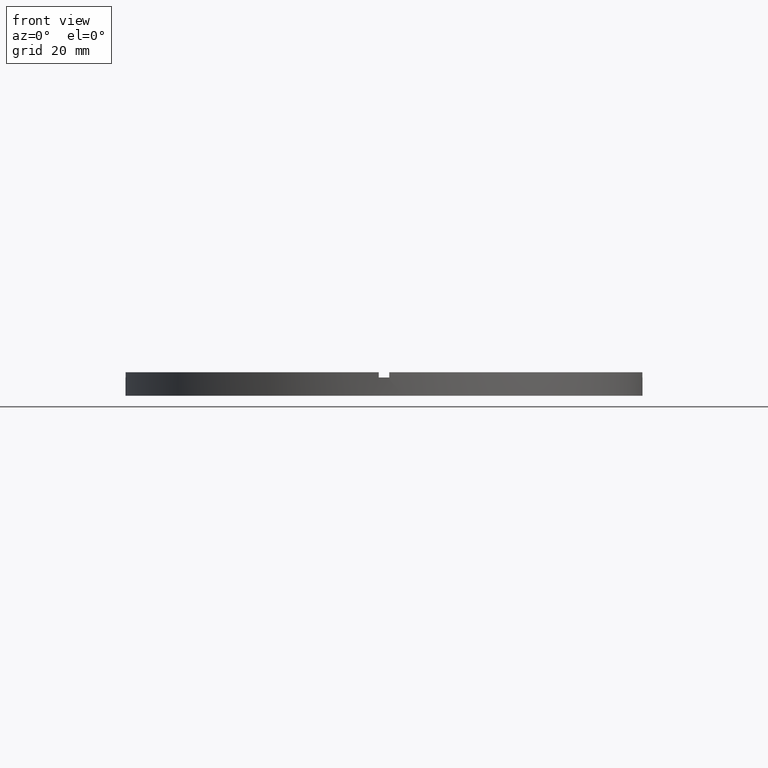
[diagram: clean part render]
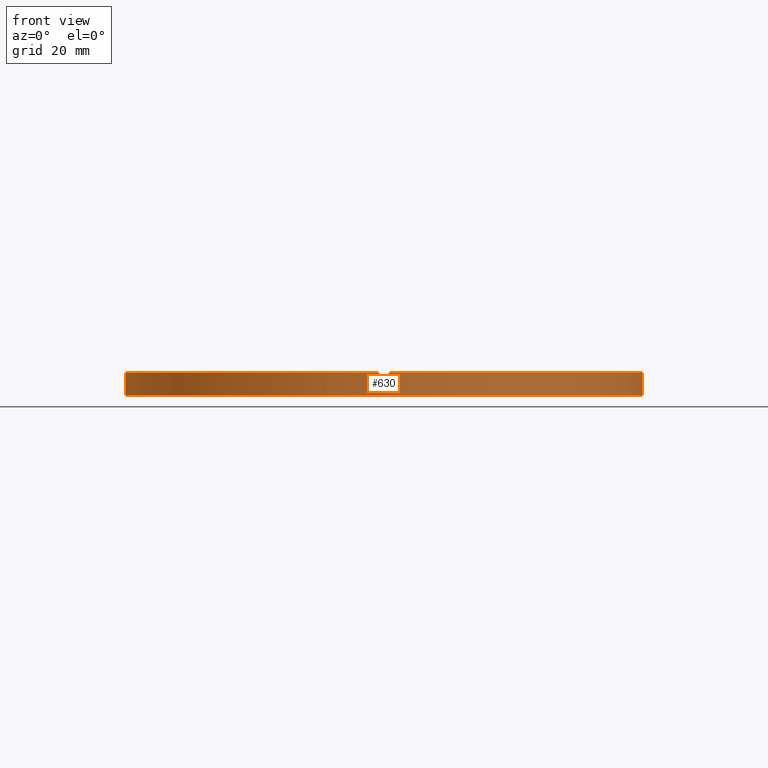
[diagram: same view with one face highlighted and labeled with its STEP entity id]
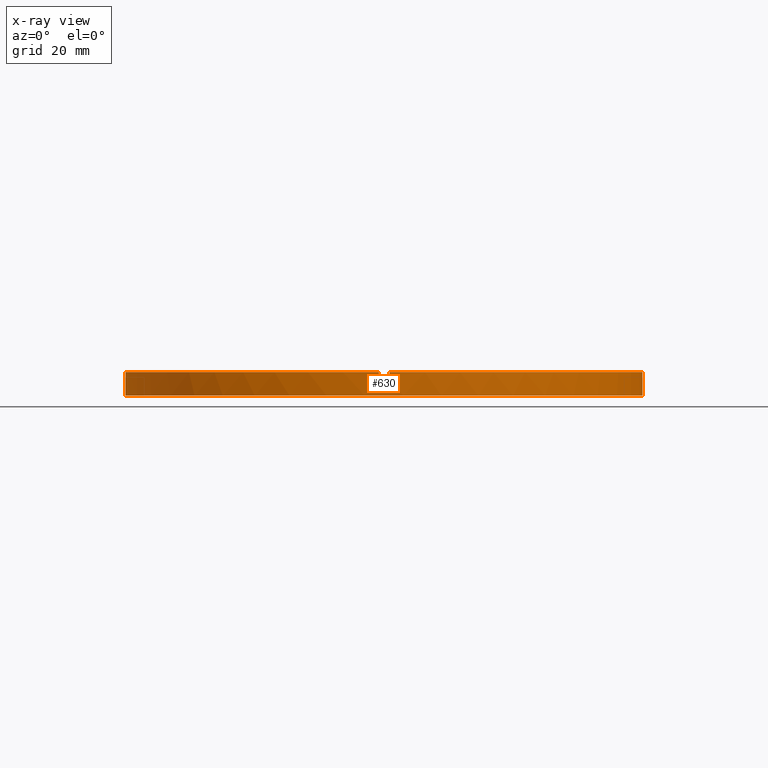
[diagram: x-ray of the same camera — body ghosted, the highlighted face saturated]
A machine part, front view. The second image highlights one B-rep face of the part: STEP entity #630.
The next image is the same camera in x-ray: the body ghosted, the highlighted face saturated — about 0% of this face is hidden behind the body in this view.
In plain terms, the highlighted cylindrical surface (partial cylindrical patch) has radius 49.5 mm, axis along (-0, -0, -1).
Its self-contained STEP definition (entity closure, byte-faithful):
#11 = DIRECTION ( 'NONE',  ( 0.000000000000000000, 0.000000000000000000, 1.000000000000000000 ) ) ;
#12 = LINE ( 'NONE', #435, #508 ) ;
#16 = VECTOR ( 'NONE', #64, 1000.000000000000000 ) ;
#29 = AXIS2_PLACEMENT_3D ( 'NONE', #514, #223, #214 ) ;
#31 = ORIENTED_EDGE ( 'NONE', *, *, #663, .F. ) ;
#34 = CARTESIAN_POINT ( 'NONE',  ( -49.50000000000000711, 0.000000000000000000, 0.000000000000000000 ) ) ;
#42 = ORIENTED_EDGE ( 'NONE', *, *, #594, .T. ) ;
#45 = ORIENTED_EDGE ( 'NONE', *, *, #406, .T. ) ;
#64 = DIRECTION ( 'NONE',  ( -0.000000000000000000, -0.000000000000000000, -1.000000000000000000 ) ) ;
#75 = EDGE_CURVE ( 'NONE', #221, #384, #12, .T. ) ;
#87 = CARTESIAN_POINT ( 'NONE',  ( 0.000000000000000000, 0.000000000000000000, 3.499999999999999556 ) ) ;
#90 = EDGE_CURVE ( 'NONE', #302, #783, #511, .T. ) ;
#91 = CARTESIAN_POINT ( 'NONE',  ( -49.48989795907849043, -1.000000000000031308, 3.499999999999999556 ) ) ;
#93 = EDGE_CURVE ( 'NONE', #424, #757, #444, .T. ) ;
#109 = CARTESIAN_POINT ( 'NONE',  ( 0.9999999999998430145, -49.48989795907849043, 3.499999999999999556 ) ) ;
#110 = AXIS2_PLACEMENT_3D ( 'NONE', #711, #11, #596 ) ;
#119 = EDGE_CURVE ( 'NONE', #424, #496, #193, .T. ) ;
#121 = AXIS2_PLACEMENT_3D ( 'NONE', #440, #497, #751 ) ;
#126 = EDGE_CURVE ( 'NONE', #687, #504, #449, .T. ) ;
#130 = DIRECTION ( 'NONE',  ( 0.000000000000000000, 0.000000000000000000, 1.000000000000000000 ) ) ;
#144 = CARTESIAN_POINT ( 'NONE',  ( 0.000000000000000000, 0.000000000000000000, 3.499999999999999556 ) ) ;
#152 = CIRCLE ( 'NONE', #773, 49.50000000000000711 ) ;
#156 = AXIS2_PLACEMENT_3D ( 'NONE', #144, #347, #448 ) ;
#172 = CARTESIAN_POINT ( 'NONE',  ( -49.50000000000000711, 0.000000000000000000, 3.499999999999999556 ) ) ;
#173 = VECTOR ( 'NONE', #567, 1000.000000000000000 ) ;
#184 = VECTOR ( 'NONE', #746, 1000.000000000000000 ) ;
#190 = VECTOR ( 'NONE', #618, 1000.000000000000000 ) ;
#193 = CIRCLE ( 'NONE', #388, 49.50000000000000711 ) ;
#202 = FACE_OUTER_BOUND ( 'NONE', #292, .T. ) ;
#210 = LINE ( 'NONE', #493, #173 ) ;
#214 = DIRECTION ( 'NONE',  ( 1.000000000000000000, 0.000000000000000000, 0.000000000000000000 ) ) ;
#221 = VERTEX_POINT ( 'NONE', #608 ) ;
#223 = DIRECTION ( 'NONE',  ( -0.000000000000000000, 0.000000000000000000, 1.000000000000000000 ) ) ;
#226 = CARTESIAN_POINT ( 'NONE',  ( -1.000000000000156986, -49.48989795907849043, 4.500000000000000000 ) ) ;
#229 = AXIS2_PLACEMENT_3D ( 'NONE', #509, #284, #678 ) ;
#233 = ORIENTED_EDGE ( 'NONE', *, *, #126, .F. ) ;
#236 = EDGE_CURVE ( 'NONE', #302, #757, #152, .T. ) ;
#258 = VERTEX_POINT ( 'NONE', #470 ) ;
#284 = DIRECTION ( 'NONE',  ( -0.000000000000000000, -0.000000000000000000, -1.000000000000000000 ) ) ;
#292 = EDGE_LOOP ( 'NONE', ( #359, #31, #42, #233, #647, #533, #45, #368, #478, #536, #650, #753 ) ) ;
#302 = VERTEX_POINT ( 'NONE', #172 ) ;
#319 = EDGE_CURVE ( 'NONE', #646, #367, #418, .T. ) ;
#336 = DIRECTION ( 'NONE',  ( 0.000000000000000000, 0.000000000000000000, 1.000000000000000000 ) ) ;
#340 = CARTESIAN_POINT ( 'NONE',  ( 0.9999999999998430145, -49.48989795907849043, 4.500000000000000000 ) ) ;
#341 = CARTESIAN_POINT ( 'NONE',  ( -49.48989795907849043, -1.000000000000031308, 4.500000000000000000 ) ) ;
#347 = DIRECTION ( 'NONE',  ( 0.000000000000000000, 0.000000000000000000, 1.000000000000000000 ) ) ;
#359 = ORIENTED_EDGE ( 'NONE', *, *, #75, .F. ) ;
#367 = VERTEX_POINT ( 'NONE', #109 ) ;
#368 = ORIENTED_EDGE ( 'NONE', *, *, #119, .F. ) ;
#384 = VERTEX_POINT ( 'NONE', #464 ) ;
#387 = EDGE_CURVE ( 'NONE', #783, #384, #415, .T. ) ;
#388 = AXIS2_PLACEMENT_3D ( 'NONE', #432, #336, #512 ) ;
#406 = EDGE_CURVE ( 'NONE', #646, #496, #694, .T. ) ;
#415 = CIRCLE ( 'NONE', #121, 49.50000000000000711 ) ;
#418 = CIRCLE ( 'NONE', #29, 49.50000000000000711 ) ;
#424 = VERTEX_POINT ( 'NONE', #645 ) ;
#432 = CARTESIAN_POINT ( 'NONE',  ( 0.000000000000000000, 0.000000000000000000, 4.500000000000000000 ) ) ;
#435 = CARTESIAN_POINT ( 'NONE',  ( 49.50000000000000711, 6.062001655779399300E-15, 4.500000000000000000 ) ) ;
#440 = CARTESIAN_POINT ( 'NONE',  ( 0.000000000000000000, 0.000000000000000000, 0.000000000000000000 ) ) ;
#441 = VECTOR ( 'NONE', #561, 1000.000000000000000 ) ;
#444 = LINE ( 'NONE', #341, #441 ) ;
#448 = DIRECTION ( 'NONE',  ( 1.000000000000000000, 0.000000000000000000, 0.000000000000000000 ) ) ;
#449 = CIRCLE ( 'NONE', #110, 49.50000000000000711 ) ;
#456 = CYLINDRICAL_SURFACE ( 'NONE', #229, 49.50000000000000711 ) ;
#464 = CARTESIAN_POINT ( 'NONE',  ( 49.50000000000000711, 6.062001655779399300E-15, 0.000000000000000000 ) ) ;
#470 = CARTESIAN_POINT ( 'NONE',  ( 49.48989795907849043, -1.000000000000155209, 3.499999999999999556 ) ) ;
#478 = ORIENTED_EDGE ( 'NONE', *, *, #93, .T. ) ;
#493 = CARTESIAN_POINT ( 'NONE',  ( 49.48989795907849043, -1.000000000000155209, 4.500000000000000000 ) ) ;
#496 = VERTEX_POINT ( 'NONE', #226 ) ;
#497 = DIRECTION ( 'NONE',  ( 0.000000000000000000, 0.000000000000000000, 1.000000000000000000 ) ) ;
#504 = VERTEX_POINT ( 'NONE', #606 ) ;
#508 = VECTOR ( 'NONE', #563, 1000.000000000000000 ) ;
#509 = CARTESIAN_POINT ( 'NONE',  ( 0.000000000000000000, 0.000000000000000000, 4.500000000000000000 ) ) ;
#511 = LINE ( 'NONE', #640, #16 ) ;
#512 = DIRECTION ( 'NONE',  ( 1.000000000000000000, 0.000000000000000000, 0.000000000000000000 ) ) ;
#514 = CARTESIAN_POINT ( 'NONE',  ( 0.000000000000000000, 0.000000000000000000, 3.499999999999999556 ) ) ;
#533 = ORIENTED_EDGE ( 'NONE', *, *, #319, .F. ) ;
#536 = ORIENTED_EDGE ( 'NONE', *, *, #236, .F. ) ;
#561 = DIRECTION ( 'NONE',  ( -0.000000000000000000, -0.000000000000000000, -1.000000000000000000 ) ) ;
#563 = DIRECTION ( 'NONE',  ( -0.000000000000000000, -0.000000000000000000, -1.000000000000000000 ) ) ;
#567 = DIRECTION ( 'NONE',  ( 0.000000000000000000, 0.000000000000000000, 1.000000000000000000 ) ) ;
#593 = CARTESIAN_POINT ( 'NONE',  ( -1.000000000000156986, -49.48989795907849043, 4.500000000000000000 ) ) ;
#594 = EDGE_CURVE ( 'NONE', #258, #504, #210, .T. ) ;
#596 = DIRECTION ( 'NONE',  ( 1.000000000000000000, 0.000000000000000000, 0.000000000000000000 ) ) ;
#606 = CARTESIAN_POINT ( 'NONE',  ( 49.48989795907849043, -1.000000000000155209, 4.500000000000000000 ) ) ;
#608 = CARTESIAN_POINT ( 'NONE',  ( 49.50000000000000711, 6.062001655779399300E-15, 3.499999999999999556 ) ) ;
#615 = CARTESIAN_POINT ( 'NONE',  ( -1.000000000000156986, -49.48989795907849043, 3.499999999999999556 ) ) ;
#618 = DIRECTION ( 'NONE',  ( 0.000000000000000000, 0.000000000000000000, 1.000000000000000000 ) ) ;
#623 = EDGE_CURVE ( 'NONE', #687, #367, #733, .T. ) ;
#630 = ADVANCED_FACE ( 'NONE', ( #202 ), #456, .T. ) ;
#640 = CARTESIAN_POINT ( 'NONE',  ( -49.50000000000000711, 0.000000000000000000, 4.500000000000000000 ) ) ;
#645 = CARTESIAN_POINT ( 'NONE',  ( -49.48989795907849043, -1.000000000000031308, 4.500000000000000000 ) ) ;
#646 = VERTEX_POINT ( 'NONE', #615 ) ;
#647 = ORIENTED_EDGE ( 'NONE', *, *, #623, .T. ) ;
#650 = ORIENTED_EDGE ( 'NONE', *, *, #90, .T. ) ;
#663 = EDGE_CURVE ( 'NONE', #258, #221, #727, .T. ) ;
#669 = DIRECTION ( 'NONE',  ( 1.000000000000000000, 0.000000000000000000, 0.000000000000000000 ) ) ;
#678 = DIRECTION ( 'NONE',  ( -1.000000000000000000, 0.000000000000000000, 0.000000000000000000 ) ) ;
#687 = VERTEX_POINT ( 'NONE', #697 ) ;
#694 = LINE ( 'NONE', #593, #190 ) ;
#697 = CARTESIAN_POINT ( 'NONE',  ( 0.9999999999998430145, -49.48989795907849043, 4.500000000000000000 ) ) ;
#711 = CARTESIAN_POINT ( 'NONE',  ( 0.000000000000000000, 0.000000000000000000, 4.500000000000000000 ) ) ;
#727 = CIRCLE ( 'NONE', #156, 49.50000000000000711 ) ;
#733 = LINE ( 'NONE', #340, #184 ) ;
#746 = DIRECTION ( 'NONE',  ( -0.000000000000000000, -0.000000000000000000, -1.000000000000000000 ) ) ;
#751 = DIRECTION ( 'NONE',  ( 1.000000000000000000, 0.000000000000000000, 0.000000000000000000 ) ) ;
#753 = ORIENTED_EDGE ( 'NONE', *, *, #387, .T. ) ;
#757 = VERTEX_POINT ( 'NONE', #91 ) ;
#773 = AXIS2_PLACEMENT_3D ( 'NONE', #87, #130, #669 ) ;
#783 = VERTEX_POINT ( 'NONE', #34 ) ;